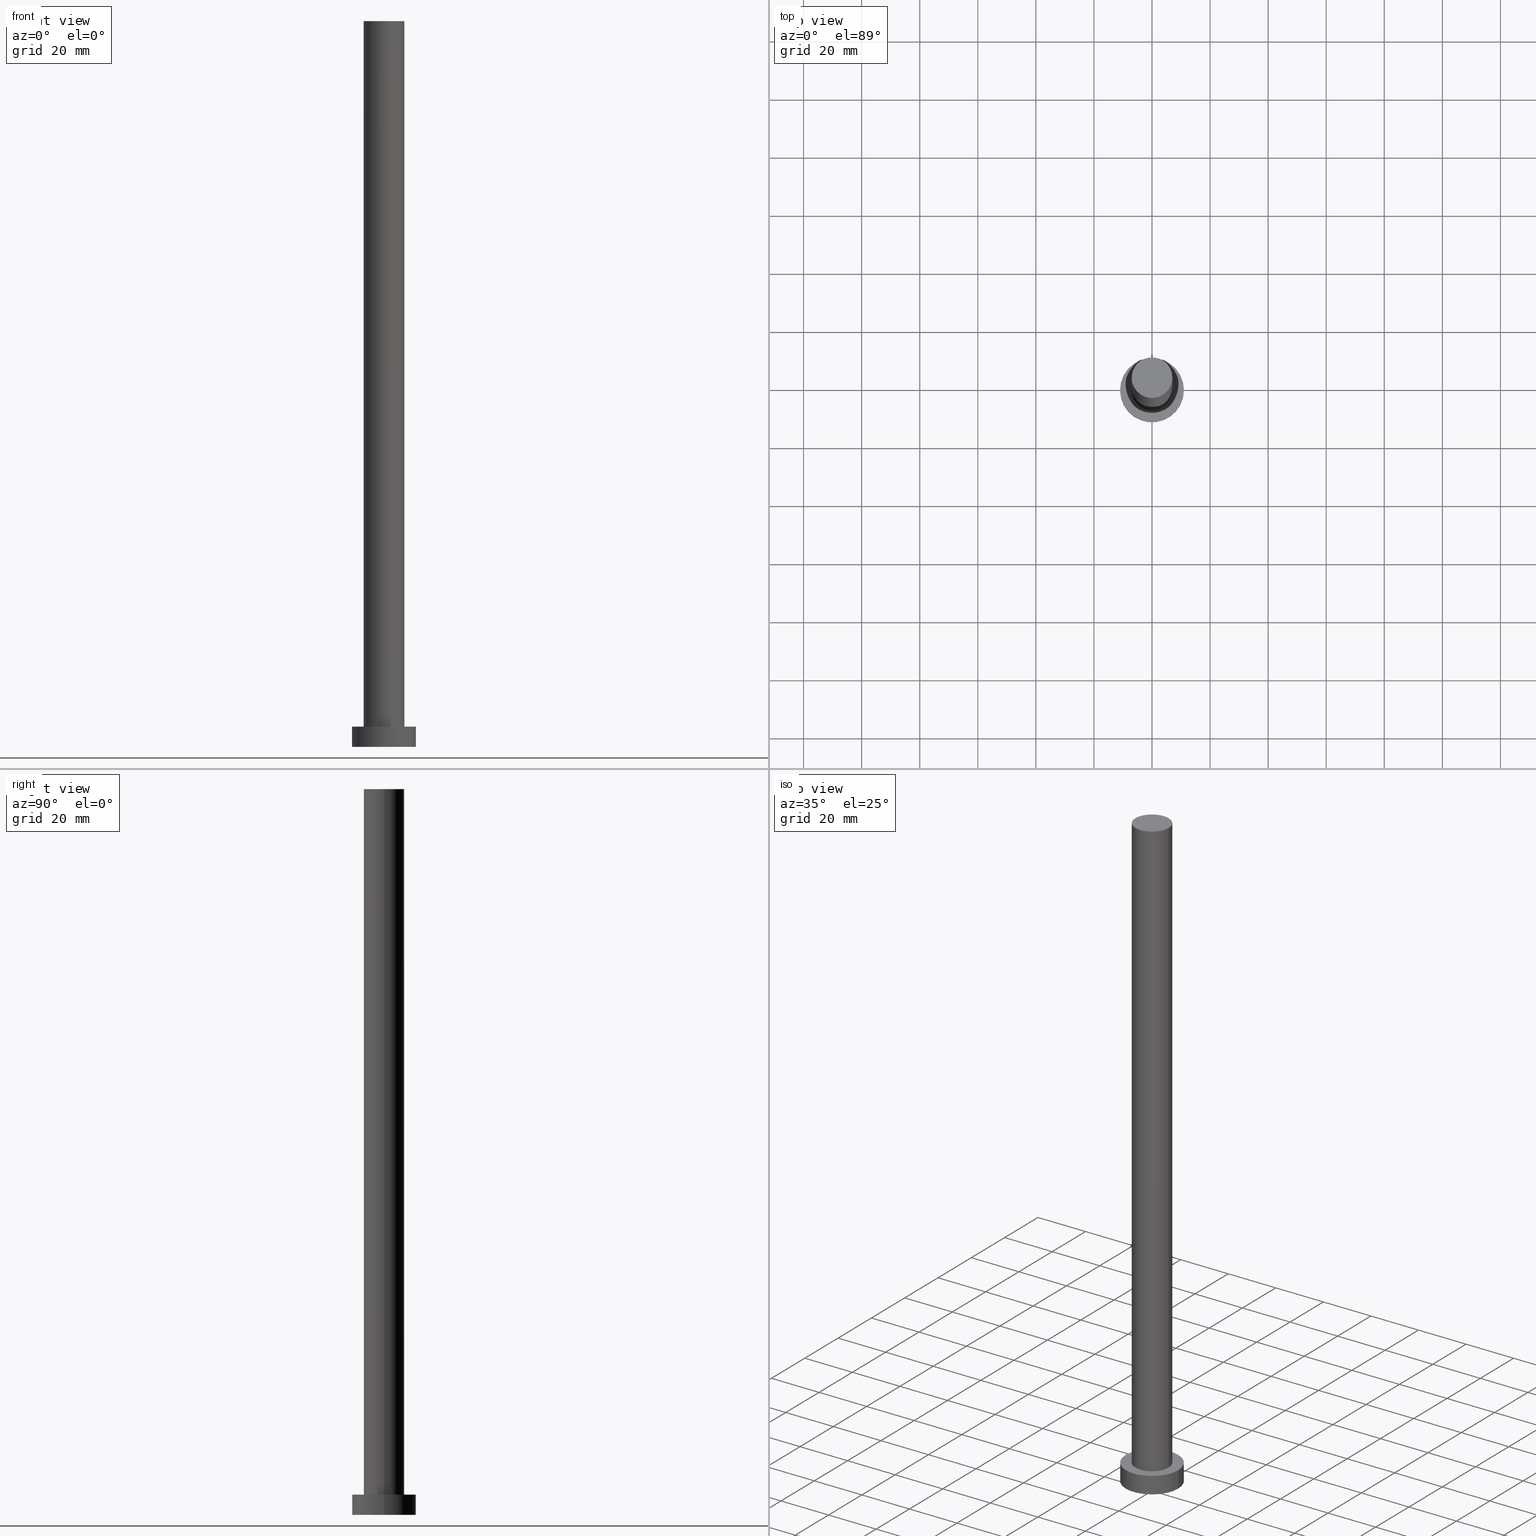
[diagram: canonical four-view strip — front | top / right | iso, engineering-drawing reading convention]
A machine part, canonical four-view strip (front | top / right | iso — engineering-drawing reading convention). The complete STEP part file that produces these views, byte-faithful:
ISO-10303-21;
HEADER;
FILE_DESCRIPTION (( 'STEP AP203' ),
    '1' );
FILE_NAME ('ead9.STEP',
    '2023-02-12T10:52:51',
    ( '' ),
    ( '' ),
    'SwSTEP 2.0',
    'SolidWorks 2019',
    '' );
FILE_SCHEMA (( 'CONFIG_CONTROL_DESIGN' ));
ENDSEC;

DATA;
#1 = VECTOR ( 'NONE', #66, 1000.000000000000000 ) ;
#2 = CARTESIAN_POINT ( 'NONE',  ( 0.000000000000000000, 0.000000000000000000, 0.000000000000000000 ) ) ;
#3 = CARTESIAN_POINT ( 'NONE',  ( 7.000000000000000888, 8.572527594031474176E-16, 7.000000000000000000 ) ) ;
#4 = PERSON_AND_ORGANIZATION ( #89, #192 ) ;
#5 =( LENGTH_UNIT ( ) NAMED_UNIT ( * ) SI_UNIT ( .MILLI., .METRE. ) );
#6 = AXIS2_PLACEMENT_3D ( 'NONE', #189, #82, #33 ) ;
#7 = PLANE ( 'NONE',  #41 ) ;
#8 = ADVANCED_FACE ( 'NONE', ( #139, #142 ), #80, .T. ) ;
#9 = ORIENTED_EDGE ( 'NONE', *, *, #23, .T. ) ;
#10 = PERSON_AND_ORGANIZATION ( #89, #192 ) ;
#11 = ORIENTED_EDGE ( 'NONE', *, *, #94, .T. ) ;
#12 = COORDINATED_UNIVERSAL_TIME_OFFSET ( 1, 0, .AHEAD. ) ;
#13 = ORIENTED_EDGE ( 'NONE', *, *, #14, .F. ) ;
#14 = EDGE_CURVE ( 'NONE', #181, #244, #21, .T. ) ;
#15 = DIRECTION ( 'NONE',  ( -1.000000000000000000, 0.000000000000000000, 0.000000000000000000 ) ) ;
#16 = DIRECTION ( 'NONE',  ( -1.000000000000000000, 0.000000000000000000, 0.000000000000000000 ) ) ;
#17 = ADVANCED_FACE ( 'NONE', ( #100 ), #85, .F. ) ;
#18 = CARTESIAN_POINT ( 'NONE',  ( 7.000000000000000888, 8.572527594031474176E-16, 250.0000000000000000 ) ) ;
#19 = CARTESIAN_POINT ( 'NONE',  ( 0.000000000000000000, 0.000000000000000000, 0.000000000000000000 ) ) ;
#20 = APPROVAL_STATUS ( 'not_yet_approved' ) ;
#21 = CIRCLE ( 'NONE', #146, 11.00000000000000000 ) ;
#22 = DIRECTION ( 'NONE',  ( 0.000000000000000000, 0.000000000000000000, 1.000000000000000000 ) ) ;
#23 = EDGE_CURVE ( 'NONE', #92, #98, #166, .T. ) ;
#24 = APPLICATION_PROTOCOL_DEFINITION ( 'international standard', 'config_control_design', 1994, #47 ) ;
#25 = DIRECTION ( 'NONE',  ( 0.000000000000000000, 0.000000000000000000, 1.000000000000000000 ) ) ;
#26 = CC_DESIGN_APPROVAL ( #95, ( #229 ) ) ;
#27 = ORIENTED_EDGE ( 'NONE', *, *, #94, .F. ) ;
#28 = EDGE_LOOP ( 'NONE', ( #93, #224 ) ) ;
#29 = AXIS2_PLACEMENT_3D ( 'NONE', #54, #22, #67 ) ;
#30 = ORIENTED_EDGE ( 'NONE', *, *, #173, .F. ) ;
#31 = LINE ( 'NONE', #52, #213 ) ;
#32 = DIRECTION ( 'NONE',  ( -0.000000000000000000, -0.000000000000000000, -1.000000000000000000 ) ) ;
#33 = DIRECTION ( 'NONE',  ( 1.000000000000000000, 0.000000000000000000, 0.000000000000000000 ) ) ;
#34 = VECTOR ( 'NONE', #141, 1000.000000000000000 ) ;
#35 = AXIS2_PLACEMENT_3D ( 'NONE', #174, #25, #193 ) ;
#36 = LINE ( 'NONE', #186, #226 ) ;
#37 = DIRECTION ( 'NONE',  ( 1.000000000000000000, 0.000000000000000000, 0.000000000000000000 ) ) ;
#38 = EDGE_CURVE ( 'NONE', #181, #98, #31, .T. ) ;
#39 = DIRECTION ( 'NONE',  ( 0.000000000000000000, 0.000000000000000000, 1.000000000000000000 ) ) ;
#40 =( NAMED_UNIT ( * ) SI_UNIT ( $, .STERADIAN. ) SOLID_ANGLE_UNIT ( ) );
#41 = AXIS2_PLACEMENT_3D ( 'NONE', #129, #128, #211 ) ;
#42 = ORIENTED_EDGE ( 'NONE', *, *, #56, .T. ) ;
#43 = ORIENTED_EDGE ( 'NONE', *, *, #23, .F. ) ;
#44 = EDGE_LOOP ( 'NONE', ( #27, #42, #155, #132 ) ) ;
#45 = ORIENTED_EDGE ( 'NONE', *, *, #165, .T. ) ;
#46 = CARTESIAN_POINT ( 'NONE',  ( -11.00000000000000000, 0.000000000000000000, 0.000000000000000000 ) ) ;
#47 = APPLICATION_CONTEXT ( 'configuration controlled 3d designs of mechanical parts and assemblies' ) ;
#48 = FACE_OUTER_BOUND ( 'NONE', #156, .T. ) ;
#49 = LINE ( 'NONE', #225, #34 ) ;
#50 = DIRECTION ( 'NONE',  ( -0.000000000000000000, -0.000000000000000000, -1.000000000000000000 ) ) ;
#51 = APPLICATION_CONTEXT ( 'configuration controlled 3d designs of mechanical parts and assemblies' ) ;
#52 = CARTESIAN_POINT ( 'NONE',  ( 11.00000000000000000, 1.347111479062088405E-15, 7.000000000000000000 ) ) ;
#53 = DATE_AND_TIME ( #212, #91 ) ;
#54 = CARTESIAN_POINT ( 'NONE',  ( 0.000000000000000000, 0.000000000000000000, 0.000000000000000000 ) ) ;
#55 = CIRCLE ( 'NONE', #83, 7.000000000000000888 ) ;
#56 = EDGE_CURVE ( 'NONE', #60, #217, #255, .T. ) ;
#57 = PRODUCT_RELATED_PRODUCT_CATEGORY ( 'detail', '', ( #144 ) ) ;
#58 = CARTESIAN_POINT ( 'NONE',  ( -11.00000000000000000, 0.000000000000000000, 7.000000000000000000 ) ) ;
#59 = ORIENTED_EDGE ( 'NONE', *, *, #38, .F. ) ;
#60 = VERTEX_POINT ( 'NONE', #249 ) ;
#61 = DATE_AND_TIME ( #197, #112 ) ;
#62 = DIRECTION ( 'NONE',  ( 0.000000000000000000, 0.000000000000000000, 1.000000000000000000 ) ) ;
#63 = CARTESIAN_POINT ( 'NONE',  ( 0.000000000000000000, 0.000000000000000000, 250.0000000000000000 ) ) ;
#64 = DIRECTION ( 'NONE',  ( 1.000000000000000000, 0.000000000000000000, -0.000000000000000000 ) ) ;
#65 = DIRECTION ( 'NONE',  ( -1.000000000000000000, 0.000000000000000000, 0.000000000000000000 ) ) ;
#66 = DIRECTION ( 'NONE',  ( -0.000000000000000000, -0.000000000000000000, -1.000000000000000000 ) ) ;
#67 = DIRECTION ( 'NONE',  ( 1.000000000000000000, 0.000000000000000000, 0.000000000000000000 ) ) ;
#68 = CC_DESIGN_DATE_AND_TIME_ASSIGNMENT ( #53, #111, ( #113 ) ) ;
#69 = AXIS2_PLACEMENT_3D ( 'NONE', #145, #163, #37 ) ;
#70 = APPROVAL_ROLE ( '' ) ;
#71 = AXIS2_PLACEMENT_3D ( 'NONE', #102, #121, #81 ) ;
#72 = PERSON_AND_ORGANIZATION ( #89, #192 ) ;
#73 = PERSON_AND_ORGANIZATION_ROLE ( 'classification_officer' ) ;
#74 = VERTEX_POINT ( 'NONE', #252 ) ;
#75 = LOCAL_TIME ( 11, 52, 51.00000000000000000, #246 ) ;
#76 = DATE_TIME_ROLE ( 'classification_date' ) ;
#77 = ORIENTED_EDGE ( 'NONE', *, *, #120, .T. ) ;
#78 = PERSON_AND_ORGANIZATION ( #89, #192 ) ;
#79 = EDGE_LOOP ( 'NONE', ( #117, #243 ) ) ;
#80 = PLANE ( 'NONE',  #240 ) ;
#81 = DIRECTION ( 'NONE',  ( -1.000000000000000000, 0.000000000000000000, 0.000000000000000000 ) ) ;
#82 = DIRECTION ( 'NONE',  ( 0.000000000000000000, 0.000000000000000000, 1.000000000000000000 ) ) ;
#83 = AXIS2_PLACEMENT_3D ( 'NONE', #63, #232, #233 ) ;
#84 =( GEOMETRIC_REPRESENTATION_CONTEXT ( 3 ) GLOBAL_UNCERTAINTY_ASSIGNED_CONTEXT ( ( #154 ) ) GLOBAL_UNIT_ASSIGNED_CONTEXT ( ( #5, #147, #40 ) ) REPRESENTATION_CONTEXT ( 'NONE', 'WORKASPACE' ) );
#85 = PLANE ( 'NONE',  #99 ) ;
#86 = DIRECTION ( 'NONE',  ( -0.000000000000000000, -0.000000000000000000, -1.000000000000000000 ) ) ;
#87 = PERSON_AND_ORGANIZATION_ROLE ( 'design_owner' ) ;
#88 = CC_DESIGN_APPROVAL ( #127, ( #248 ) ) ;
#89 = PERSON ( 'NEUR�EN�', 'NEUR�EN�', 'NEUR�EN�', ('NEUR�EN�'), ('NEUR�EN�'), ('NEUR�EN�') ) ;
#90 = MECHANICAL_CONTEXT ( 'NONE', #51, 'mechanical' ) ;
#91 = LOCAL_TIME ( 11, 52, 51.00000000000000000, #238 ) ;
#92 = VERTEX_POINT ( 'NONE', #46 ) ;
#93 = ORIENTED_EDGE ( 'NONE', *, *, #208, .F. ) ;
#94 = EDGE_CURVE ( 'NONE', #60, #74, #55, .T. ) ;
#95 = APPROVAL ( #183, 'NEUR�EN�' ) ;
#96 = PERSON_AND_ORGANIZATION ( #89, #192 ) ;
#97 = EDGE_LOOP ( 'NONE', ( #77, #11 ) ) ;
#98 = VERTEX_POINT ( 'NONE', #143 ) ;
#99 = AXIS2_PLACEMENT_3D ( 'NONE', #19, #167, #64 ) ;
#100 = FACE_OUTER_BOUND ( 'NONE', #161, .T. ) ;
#101 = CC_DESIGN_PERSON_AND_ORGANIZATION_ASSIGNMENT ( #110, #87, ( #144 ) ) ;
#102 = CARTESIAN_POINT ( 'NONE',  ( 0.000000000000000000, 0.000000000000000000, 250.0000000000000000 ) ) ;
#103 = PRODUCT_DEFINITION_SHAPE ( 'NONE', 'NONE',  #113 ) ;
#104 = DIRECTION ( 'NONE',  ( 1.000000000000000000, 0.000000000000000000, -0.000000000000000000 ) ) ;
#105 = CIRCLE ( 'NONE', #140, 7.000000000000000888 ) ;
#106 = DIRECTION ( 'NONE',  ( -0.000000000000000000, -0.000000000000000000, -1.000000000000000000 ) ) ;
#107 = CARTESIAN_POINT ( 'NONE',  ( 0.000000000000000000, 0.000000000000000000, 250.0000000000000000 ) ) ;
#108 = PERSON_AND_ORGANIZATION ( #89, #192 ) ;
#109 = CC_DESIGN_PERSON_AND_ORGANIZATION_ASSIGNMENT ( #78, #73, ( #229 ) ) ;
#110 = PERSON_AND_ORGANIZATION ( #89, #192 ) ;
#111 = DATE_TIME_ROLE ( 'creation_date' ) ;
#112 = LOCAL_TIME ( 11, 52, 51.00000000000000000, #12 ) ;
#113 = PRODUCT_DEFINITION ( 'NEZN�M�', '', #248, #176 ) ;
#114 = ORIENTED_EDGE ( 'NONE', *, *, #138, .F. ) ;
#115 = DATE_AND_TIME ( #219, #75 ) ;
#116 = AXIS2_PLACEMENT_3D ( 'NONE', #190, #86, #65 ) ;
#117 = ORIENTED_EDGE ( 'NONE', *, *, #173, .T. ) ;
#118 = DIRECTION ( 'NONE',  ( 0.000000000000000000, 0.000000000000000000, 1.000000000000000000 ) ) ;
#120 = EDGE_CURVE ( 'NONE', #74, #60, #105, .T. ) ;
#119 = LOCAL_TIME ( 11, 52, 51.00000000000000000, #125 ) ;
#121 = DIRECTION ( 'NONE',  ( -0.000000000000000000, -0.000000000000000000, -1.000000000000000000 ) ) ;
#122 = CARTESIAN_POINT ( 'NONE',  ( 0.000000000000000000, 0.000000000000000000, 7.000000000000000000 ) ) ;
#123 = DIRECTION ( 'NONE',  ( 1.000000000000000000, 0.000000000000000000, 0.000000000000000000 ) ) ;
#124 = EDGE_LOOP ( 'NONE', ( #13, #134, #158, #114 ) ) ;
#125 = COORDINATED_UNIVERSAL_TIME_OFFSET ( 1, 0, .AHEAD. ) ;
#126 = APPROVAL_STATUS ( 'not_yet_approved' ) ;
#127 = APPROVAL ( #20, 'NEUR�EN�' ) ;
#128 = DIRECTION ( 'NONE',  ( 0.000000000000000000, 0.000000000000000000, 1.000000000000000000 ) ) ;
#129 = CARTESIAN_POINT ( 'NONE',  ( 0.000000000000000000, 0.000000000000000000, 250.0000000000000000 ) ) ;
#130 = CALENDAR_DATE ( 2023, 12, 2 ) ;
#131 = AXIS2_PLACEMENT_3D ( 'NONE', #234, #39, #172 ) ;
#132 = ORIENTED_EDGE ( 'NONE', *, *, #165, .F. ) ;
#133 = ADVANCED_FACE ( 'NONE', ( #203 ), #254, .T. ) ;
#134 = ORIENTED_EDGE ( 'NONE', *, *, #38, .T. ) ;
#135 = CIRCLE ( 'NONE', #131, 7.000000000000000888 ) ;
#136 = LOCAL_TIME ( 11, 52, 51.00000000000000000, #195 ) ;
#137 = ORIENTED_EDGE ( 'NONE', *, *, #120, .F. ) ;
#138 = EDGE_CURVE ( 'NONE', #244, #92, #49, .T. ) ;
#139 = FACE_BOUND ( 'NONE', #28, .T. ) ;
#140 = AXIS2_PLACEMENT_3D ( 'NONE', #107, #62, #123 ) ;
#141 = DIRECTION ( 'NONE',  ( -0.000000000000000000, -0.000000000000000000, -1.000000000000000000 ) ) ;
#142 = FACE_OUTER_BOUND ( 'NONE', #79, .T. ) ;
#143 = CARTESIAN_POINT ( 'NONE',  ( 11.00000000000000000, 1.347111479062088405E-15, 0.000000000000000000 ) ) ;
#144 = PRODUCT ( 'ead9', 'ead9', '', ( #90 ) ) ;
#145 = CARTESIAN_POINT ( 'NONE',  ( 0.000000000000000000, 0.000000000000000000, 0.000000000000000000 ) ) ;
#146 = AXIS2_PLACEMENT_3D ( 'NONE', #202, #169, #188 ) ;
#147 =( NAMED_UNIT ( * ) PLANE_ANGLE_UNIT ( ) SI_UNIT ( $, .RADIAN. ) );
#148 = ADVANCED_FACE ( 'NONE', ( #185 ), #227, .T. ) ;
#149 = DIRECTION ( 'NONE',  ( 0.000000000000000000, 0.000000000000000000, 1.000000000000000000 ) ) ;
#150 = FACE_OUTER_BOUND ( 'NONE', #97, .T. ) ;
#151 = DATE_AND_TIME ( #130, #136 ) ;
#152 = CC_DESIGN_PERSON_AND_ORGANIZATION_ASSIGNMENT ( #10, #179, ( #248 ) ) ;
#153 = PERSON_AND_ORGANIZATION_ROLE ( 'creator' ) ;
#154 = UNCERTAINTY_MEASURE_WITH_UNIT (LENGTH_MEASURE( 1.000000000000000082E-05 ), #5, 'distance_accuracy_value', 'NONE');
#155 = ORIENTED_EDGE ( 'NONE', *, *, #214, .T. ) ;
#156 = EDGE_LOOP ( 'NONE', ( #199, #137, #45, #220 ) ) ;
#157 = ADVANCED_FACE ( 'NONE', ( #204 ), #168, .T. ) ;
#158 = ORIENTED_EDGE ( 'NONE', *, *, #218, .T. ) ;
#159 = CC_DESIGN_PERSON_AND_ORGANIZATION_ASSIGNMENT ( #96, #200, ( #248 ) ) ;
#160 = PERSON_AND_ORGANIZATION ( #89, #192 ) ;
#161 = EDGE_LOOP ( 'NONE', ( #43, #239 ) ) ;
#162 = VERTEX_POINT ( 'NONE', #231 ) ;
#163 = DIRECTION ( 'NONE',  ( 0.000000000000000000, 0.000000000000000000, 1.000000000000000000 ) ) ;
#164 = CYLINDRICAL_SURFACE ( 'NONE', #196, 7.000000000000000888 ) ;
#165 = EDGE_CURVE ( 'NONE', #74, #162, #36, .T. ) ;
#166 = CIRCLE ( 'NONE', #69, 11.00000000000000000 ) ;
#167 = DIRECTION ( 'NONE',  ( 0.000000000000000000, 0.000000000000000000, 1.000000000000000000 ) ) ;
#168 = CYLINDRICAL_SURFACE ( 'NONE', #71, 7.000000000000000888 ) ;
#169 = DIRECTION ( 'NONE',  ( 0.000000000000000000, 0.000000000000000000, 1.000000000000000000 ) ) ;
#170 = APPROVAL_ROLE ( '' ) ;
#171 = ADVANCED_FACE ( 'NONE', ( #48 ), #164, .T. ) ;
#172 = DIRECTION ( 'NONE',  ( 1.000000000000000000, 0.000000000000000000, 0.000000000000000000 ) ) ;
#173 = EDGE_CURVE ( 'NONE', #244, #181, #223, .T. ) ;
#174 = CARTESIAN_POINT ( 'NONE',  ( 0.000000000000000000, 0.000000000000000000, 7.000000000000000000 ) ) ;
#175 = AXIS2_PLACEMENT_3D ( 'NONE', #2, #149, #235 ) ;
#176 = DESIGN_CONTEXT ( 'detailed design', #47, 'design' ) ;
#177 = APPLICATION_PROTOCOL_DEFINITION ( 'international standard', 'config_control_design', 1994, #51 ) ;
#178 = SECURITY_CLASSIFICATION_LEVEL ( 'unclassified' ) ;
#179 = PERSON_AND_ORGANIZATION_ROLE ( 'design_supplier' ) ;
#180 = CIRCLE ( 'NONE', #175, 11.00000000000000000 ) ;
#181 = VERTEX_POINT ( 'NONE', #194 ) ;
#182 = CC_DESIGN_PERSON_AND_ORGANIZATION_ASSIGNMENT ( #108, #153, ( #113 ) ) ;
#183 = APPROVAL_STATUS ( 'not_yet_approved' ) ;
#184 = ADVANCED_BREP_SHAPE_REPRESENTATION ( 'ead9', ( #222, #29 ), #84 ) ;
#185 = FACE_OUTER_BOUND ( 'NONE', #201, .T. ) ;
#186 = CARTESIAN_POINT ( 'NONE',  ( -7.000000000000000888, 0.000000000000000000, 250.0000000000000000 ) ) ;
#187 = ADVANCED_FACE ( 'NONE', ( #150 ), #7, .T. ) ;
#188 = DIRECTION ( 'NONE',  ( 1.000000000000000000, 0.000000000000000000, 0.000000000000000000 ) ) ;
#189 = CARTESIAN_POINT ( 'NONE',  ( 0.000000000000000000, 0.000000000000000000, 7.000000000000000000 ) ) ;
#190 = CARTESIAN_POINT ( 'NONE',  ( 0.000000000000000000, 0.000000000000000000, 7.000000000000000000 ) ) ;
#191 = AXIS2_PLACEMENT_3D ( 'NONE', #122, #205, #15 ) ;
#192 = ORGANIZATION ( 'NEUR�EN�', 'NEUR�EN�', '' ) ;
#193 = DIRECTION ( 'NONE',  ( 1.000000000000000000, 0.000000000000000000, 0.000000000000000000 ) ) ;
#194 = CARTESIAN_POINT ( 'NONE',  ( 11.00000000000000000, 1.347111479062088405E-15, 7.000000000000000000 ) ) ;
#195 = COORDINATED_UNIVERSAL_TIME_OFFSET ( 1, 0, .AHEAD. ) ;
#196 = AXIS2_PLACEMENT_3D ( 'NONE', #250, #32, #16 ) ;
#197 = CALENDAR_DATE ( 2023, 12, 2 ) ;
#198 = ORIENTED_EDGE ( 'NONE', *, *, #138, .T. ) ;
#199 = ORIENTED_EDGE ( 'NONE', *, *, #56, .F. ) ;
#200 = PERSON_AND_ORGANIZATION_ROLE ( 'creator' ) ;
#201 = EDGE_LOOP ( 'NONE', ( #59, #30, #198, #9 ) ) ;
#202 = CARTESIAN_POINT ( 'NONE',  ( 0.000000000000000000, 0.000000000000000000, 7.000000000000000000 ) ) ;
#203 = FACE_OUTER_BOUND ( 'NONE', #124, .T. ) ;
#204 = FACE_OUTER_BOUND ( 'NONE', #44, .T. ) ;
#205 = DIRECTION ( 'NONE',  ( -0.000000000000000000, -0.000000000000000000, -1.000000000000000000 ) ) ;
#206 = APPROVAL_PERSON_ORGANIZATION ( #160, #95, #216 ) ;
#207 = CARTESIAN_POINT ( 'NONE',  ( 0.000000000000000000, 0.000000000000000000, 7.000000000000000000 ) ) ;
#208 = EDGE_CURVE ( 'NONE', #162, #217, #135, .T. ) ;
#209 = CALENDAR_DATE ( 2023, 12, 2 ) ;
#210 = DATE_AND_TIME ( #209, #119 ) ;
#211 = DIRECTION ( 'NONE',  ( 1.000000000000000000, 0.000000000000000000, -0.000000000000000000 ) ) ;
#212 = CALENDAR_DATE ( 2023, 12, 2 ) ;
#213 = VECTOR ( 'NONE', #50, 1000.000000000000000 ) ;
#214 = EDGE_CURVE ( 'NONE', #217, #162, #228, .T. ) ;
#215 = CC_DESIGN_SECURITY_CLASSIFICATION ( #229, ( #248 ) ) ;
#216 = APPROVAL_ROLE ( '' ) ;
#217 = VERTEX_POINT ( 'NONE', #3 ) ;
#218 = EDGE_CURVE ( 'NONE', #98, #92, #180, .T. ) ;
#219 = CALENDAR_DATE ( 2023, 12, 2 ) ;
#220 = ORIENTED_EDGE ( 'NONE', *, *, #208, .T. ) ;
#221 = SHAPE_DEFINITION_REPRESENTATION ( #103, #184 ) ;
#222 = MANIFOLD_SOLID_BREP ( 'P�idat vysunut�m3', #251 ) ;
#223 = CIRCLE ( 'NONE', #6, 11.00000000000000000 ) ;
#224 = ORIENTED_EDGE ( 'NONE', *, *, #214, .F. ) ;
#225 = CARTESIAN_POINT ( 'NONE',  ( -11.00000000000000000, 0.000000000000000000, 7.000000000000000000 ) ) ;
#226 = VECTOR ( 'NONE', #106, 1000.000000000000000 ) ;
#227 = CYLINDRICAL_SURFACE ( 'NONE', #191, 11.00000000000000000 ) ;
#228 = CIRCLE ( 'NONE', #35, 7.000000000000000888 ) ;
#229 = SECURITY_CLASSIFICATION ( '', '', #178 ) ;
#230 = APPROVAL ( #126, 'NEUR�EN�' ) ;
#231 = CARTESIAN_POINT ( 'NONE',  ( -7.000000000000000888, 0.000000000000000000, 7.000000000000000000 ) ) ;
#232 = DIRECTION ( 'NONE',  ( 0.000000000000000000, 0.000000000000000000, 1.000000000000000000 ) ) ;
#233 = DIRECTION ( 'NONE',  ( 1.000000000000000000, 0.000000000000000000, 0.000000000000000000 ) ) ;
#234 = CARTESIAN_POINT ( 'NONE',  ( 0.000000000000000000, 0.000000000000000000, 7.000000000000000000 ) ) ;
#235 = DIRECTION ( 'NONE',  ( 1.000000000000000000, 0.000000000000000000, 0.000000000000000000 ) ) ;
#236 = APPROVAL_PERSON_ORGANIZATION ( #4, #127, #170 ) ;
#237 = APPROVAL_DATE_TIME ( #151, #230 ) ;
#238 = COORDINATED_UNIVERSAL_TIME_OFFSET ( 1, 0, .AHEAD. ) ;
#239 = ORIENTED_EDGE ( 'NONE', *, *, #218, .F. ) ;
#240 = AXIS2_PLACEMENT_3D ( 'NONE', #207, #118, #104 ) ;
#241 = CC_DESIGN_APPROVAL ( #230, ( #113 ) ) ;
#242 = APPROVAL_DATE_TIME ( #210, #127 ) ;
#243 = ORIENTED_EDGE ( 'NONE', *, *, #14, .T. ) ;
#244 = VERTEX_POINT ( 'NONE', #58 ) ;
#245 = CC_DESIGN_DATE_AND_TIME_ASSIGNMENT ( #115, #76, ( #229 ) ) ;
#246 = COORDINATED_UNIVERSAL_TIME_OFFSET ( 1, 0, .AHEAD. ) ;
#247 = APPROVAL_DATE_TIME ( #61, #95 ) ;
#248 = PRODUCT_DEFINITION_FORMATION_WITH_SPECIFIED_SOURCE ( 'LIBOVOLN�', '', #144, .NOT_KNOWN. ) ;
#249 = CARTESIAN_POINT ( 'NONE',  ( 7.000000000000000888, 8.572527594031474176E-16, 250.0000000000000000 ) ) ;
#250 = CARTESIAN_POINT ( 'NONE',  ( 0.000000000000000000, 0.000000000000000000, 250.0000000000000000 ) ) ;
#251 = CLOSED_SHELL ( 'NONE', ( #157, #133, #148, #8, #17, #171, #187 ) ) ;
#252 = CARTESIAN_POINT ( 'NONE',  ( -7.000000000000000888, 0.000000000000000000, 250.0000000000000000 ) ) ;
#253 = APPROVAL_PERSON_ORGANIZATION ( #72, #230, #70 ) ;
#254 = CYLINDRICAL_SURFACE ( 'NONE', #116, 11.00000000000000000 ) ;
#255 = LINE ( 'NONE', #18, #1 ) ;
ENDSEC;
END-ISO-10303-21;
